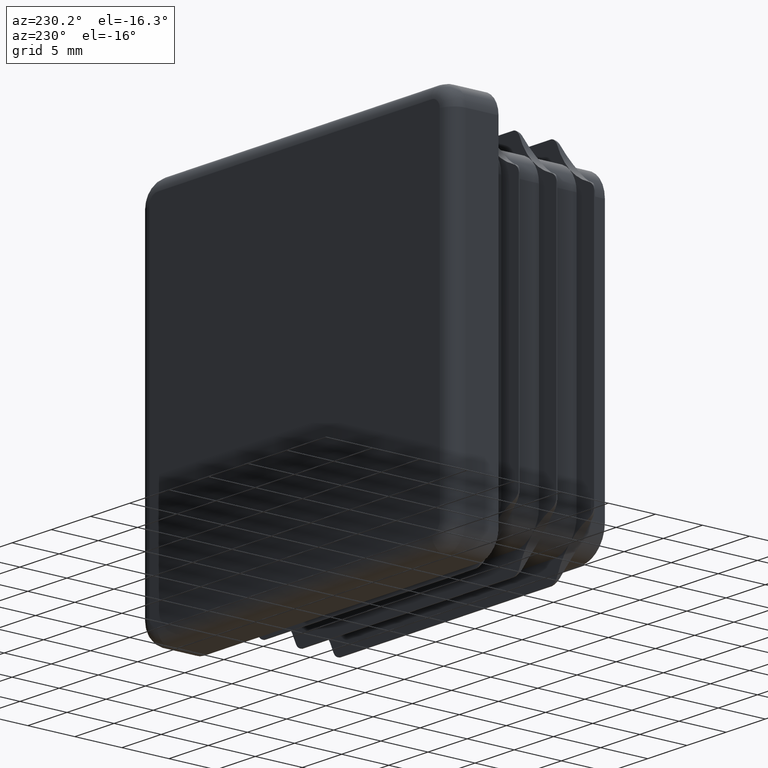
[diagram: clean part render]
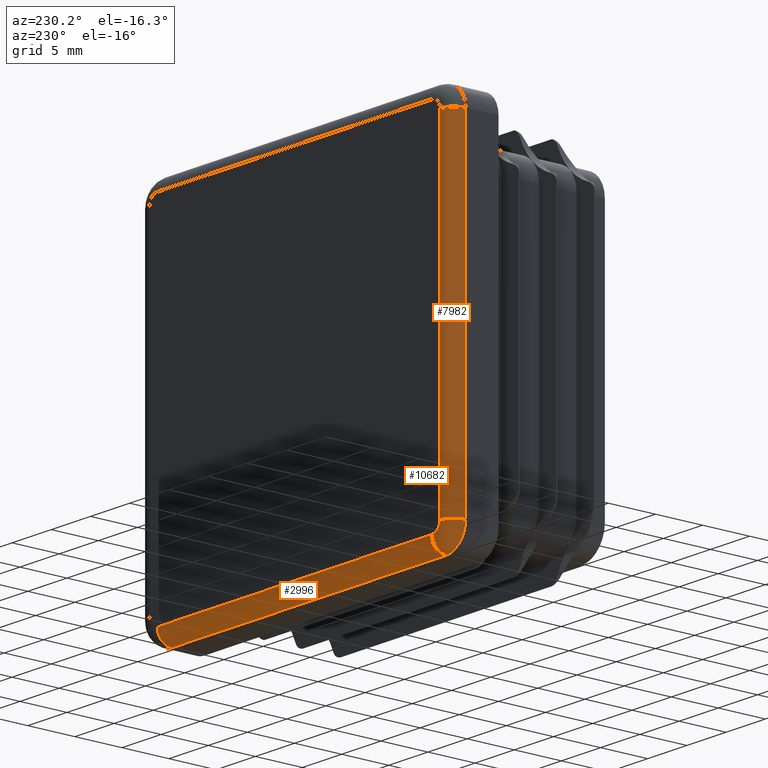
[diagram: same view with one multi-face feature highlighted, each face labeled with its STEP entity id]
A machine part, auxiliary view. The highlighted faces form ONE feature: a constant-radius fillet chain: 3 tangent blend faces with common blend radius 1.5 mm. The faces share edges in the B-rep.
Their STEP definitions:
[1] entity #7982 (Cylinder):
#122 = VERTEX_POINT ( 'NONE', #15623 ) ;
#656 = CYLINDRICAL_SURFACE ( 'NONE', #10711, 1.500000000000001332 ) ;
#1952 = CARTESIAN_POINT ( 'NONE',  ( -18.49999999999999645, 3.500000000000000000, 3.209238430557092336E-15 ) ) ;
#2255 = CIRCLE ( 'NONE', #12307, 1.500000000000001332 ) ;
#3182 = ORIENTED_EDGE ( 'NONE', *, *, #3697, .F. ) ;
#3697 = EDGE_CURVE ( 'NONE', #19536, #8913, #14415, .T. ) ;
#3851 = CARTESIAN_POINT ( 'NONE',  ( -20.00000000000000000, 3.500000000000000000, -17.50000000000000000 ) ) ;
#4991 = ORIENTED_EDGE ( 'NONE', *, *, #7551, .F. ) ;
#5098 = FACE_OUTER_BOUND ( 'NONE', #17930, .T. ) ;
#5483 = VECTOR ( 'NONE', #7696, 1000.000000000000000 ) ;
#5866 = CARTESIAN_POINT ( 'NONE',  ( -18.50000000000000355, 3.500000000000000000, -17.50000000000000000 ) ) ;
#5933 = DIRECTION ( 'NONE',  ( 0.000000000000000000, -0.000000000000000000, 1.000000000000000000 ) ) ;
#6921 = DIRECTION ( 'NONE',  ( -1.000000000000000000, 0.000000000000000000, 1.734723475976804629E-16 ) ) ;
#7551 = EDGE_CURVE ( 'NONE', #15136, #19536, #18425, .T. ) ;
#7696 = DIRECTION ( 'NONE',  ( 1.734723475976807094E-16, -0.000000000000000000, 1.000000000000000000 ) ) ;
#7982 = ADVANCED_FACE ( 'NONE', ( #5098 ), #656, .T. ) ;
#8717 = CARTESIAN_POINT ( 'NONE',  ( -18.49999999999999289, 5.000000000000000000, 17.50000000000000000 ) ) ;
#8913 = VERTEX_POINT ( 'NONE', #3851 ) ;
#9716 = LINE ( 'NONE', #18448, #5483 ) ;
#10711 = AXIS2_PLACEMENT_3D ( 'NONE', #1952, #16342, #6921 ) ;
#10949 = AXIS2_PLACEMENT_3D ( 'NONE', #12856, #15759, #11172 ) ;
#11172 = DIRECTION ( 'NONE',  ( 1.000000000000000000, 0.000000000000000000, -2.312964634635740689E-15 ) ) ;
#11248 = VECTOR ( 'NONE', #17302, 1000.000000000000000 ) ;
#11545 = CARTESIAN_POINT ( 'NONE',  ( -19.99999999999999289, 3.500000000000000000, 17.50000000000000355 ) ) ;
#12307 = AXIS2_PLACEMENT_3D ( 'NONE', #5866, #5933, #16877 ) ;
#12856 = CARTESIAN_POINT ( 'NONE',  ( -18.49999999999999289, 3.500000000000000000, 17.50000000000000000 ) ) ;
#13141 = EDGE_CURVE ( 'NONE', #122, #15136, #9716, .T. ) ;
#14040 = EDGE_CURVE ( 'NONE', #122, #8913, #2255, .T. ) ;
#14415 = LINE ( 'NONE', #15718, #11248 ) ;
#15136 = VERTEX_POINT ( 'NONE', #8717 ) ;
#15623 = CARTESIAN_POINT ( 'NONE',  ( -18.50000000000000355, 5.000000000000000000, -17.50000000000000000 ) ) ;
#15718 = CARTESIAN_POINT ( 'NONE',  ( -20.00000000000000000, 3.500000000000000000, -17.50000000000000000 ) ) ;
#15759 = DIRECTION ( 'NONE',  ( 2.312964634635740689E-15, -0.000000000000000000, 1.000000000000000000 ) ) ;
#16342 = DIRECTION ( 'NONE',  ( -1.734723475976807094E-16, 0.000000000000000000, -1.000000000000000000 ) ) ;
#16877 = DIRECTION ( 'NONE',  ( 1.000000000000000000, 0.000000000000000000, 0.000000000000000000 ) ) ;
#17037 = ORIENTED_EDGE ( 'NONE', *, *, #13141, .F. ) ;
#17302 = DIRECTION ( 'NONE',  ( -1.734723475976807094E-16, -0.000000000000000000, -1.000000000000000000 ) ) ;
#17930 = EDGE_LOOP ( 'NONE', ( #20439, #3182, #4991, #17037 ) ) ;
#18425 = CIRCLE ( 'NONE', #10949, 1.500000000000001332 ) ;
#18448 = CARTESIAN_POINT ( 'NONE',  ( -18.49999999999999289, 5.000000000000000000, 17.50000000000000355 ) ) ;
#19536 = VERTEX_POINT ( 'NONE', #11545 ) ;
#20439 = ORIENTED_EDGE ( 'NONE', *, *, #14040, .T. ) ;
[2] entity #10682 (Torus):
#122 = VERTEX_POINT ( 'NONE', #15623 ) ;
#441 = EDGE_CURVE ( 'NONE', #8643, #15096, #13423, .T. ) ;
#1873 = AXIS2_PLACEMENT_3D ( 'NONE', #11788, #13411, #3999 ) ;
#2255 = CIRCLE ( 'NONE', #12307, 1.500000000000001332 ) ;
#3308 = FACE_OUTER_BOUND ( 'NONE', #8910, .T. ) ;
#3563 = CARTESIAN_POINT ( 'NONE',  ( -17.50000000000000000, 5.000000000000000000, -18.50000000000000000 ) ) ;
#3851 = CARTESIAN_POINT ( 'NONE',  ( -20.00000000000000000, 3.500000000000000000, -17.50000000000000000 ) ) ;
#3999 = DIRECTION ( 'NONE',  ( 0.000000000000000000, 0.000000000000000000, 1.000000000000000000 ) ) ;
#5468 = DIRECTION ( 'NONE',  ( 0.000000000000000000, 0.000000000000000000, 1.000000000000000000 ) ) ;
#5546 = DIRECTION ( 'NONE',  ( 0.000000000000000000, 1.000000000000000000, 0.000000000000000000 ) ) ;
#5616 = CARTESIAN_POINT ( 'NONE',  ( -17.50000000000000000, 3.500000000000000000, -17.50000000000000000 ) ) ;
#5661 = CARTESIAN_POINT ( 'NONE',  ( -17.50000000000000000, 5.000000000000000000, -17.50000000000000000 ) ) ;
#5866 = CARTESIAN_POINT ( 'NONE',  ( -18.50000000000000355, 3.500000000000000000, -17.50000000000000000 ) ) ;
#5933 = DIRECTION ( 'NONE',  ( 0.000000000000000000, -0.000000000000000000, 1.000000000000000000 ) ) ;
#7011 = TOROIDAL_SURFACE ( 'NONE', #19389, 1.000000000000000000, 1.500000000000000000 ) ;
#7140 = DIRECTION ( 'NONE',  ( 0.000000000000000000, 0.000000000000000000, -1.000000000000000000 ) ) ;
#7355 = ORIENTED_EDGE ( 'NONE', *, *, #14040, .F. ) ;
#8643 = VERTEX_POINT ( 'NONE', #12666 ) ;
#8910 = EDGE_LOOP ( 'NONE', ( #11729, #20185, #7355, #10916 ) ) ;
#8913 = VERTEX_POINT ( 'NONE', #3851 ) ;
#8931 = AXIS2_PLACEMENT_3D ( 'NONE', #5661, #16671, #19910 ) ;
#10682 = ADVANCED_FACE ( 'NONE', ( #3308 ), #7011, .T. ) ;
#10916 = ORIENTED_EDGE ( 'NONE', *, *, #17513, .F. ) ;
#11078 = CIRCLE ( 'NONE', #8931, 1.000000000000000888 ) ;
#11729 = ORIENTED_EDGE ( 'NONE', *, *, #441, .F. ) ;
#11788 = CARTESIAN_POINT ( 'NONE',  ( -17.50000000000000000, 3.500000000000000000, -17.50000000000000000 ) ) ;
#12307 = AXIS2_PLACEMENT_3D ( 'NONE', #5866, #5933, #16877 ) ;
#12666 = CARTESIAN_POINT ( 'NONE',  ( -17.50000000000000000, 3.500000000000000000, -20.00000000000000000 ) ) ;
#13411 = DIRECTION ( 'NONE',  ( -0.000000000000000000, -1.000000000000000000, -0.000000000000000000 ) ) ;
#13423 = CIRCLE ( 'NONE', #15186, 1.500000000000001332 ) ;
#14040 = EDGE_CURVE ( 'NONE', #122, #8913, #2255, .T. ) ;
#15096 = VERTEX_POINT ( 'NONE', #3563 ) ;
#15186 = AXIS2_PLACEMENT_3D ( 'NONE', #16351, #16556, #7140 ) ;
#15618 = EDGE_CURVE ( 'NONE', #8913, #8643, #17247, .T. ) ;
#15623 = CARTESIAN_POINT ( 'NONE',  ( -18.50000000000000355, 5.000000000000000000, -17.50000000000000000 ) ) ;
#16351 = CARTESIAN_POINT ( 'NONE',  ( -17.50000000000000000, 3.500000000000000000, -18.50000000000000000 ) ) ;
#16556 = DIRECTION ( 'NONE',  ( 1.000000000000000000, 0.000000000000000000, 0.000000000000000000 ) ) ;
#16671 = DIRECTION ( 'NONE',  ( 0.000000000000000000, 1.000000000000000000, 0.000000000000000000 ) ) ;
#16877 = DIRECTION ( 'NONE',  ( 1.000000000000000000, 0.000000000000000000, 0.000000000000000000 ) ) ;
#17247 = CIRCLE ( 'NONE', #1873, 2.500000000000000444 ) ;
#17513 = EDGE_CURVE ( 'NONE', #15096, #122, #11078, .T. ) ;
#19389 = AXIS2_PLACEMENT_3D ( 'NONE', #5616, #5546, #5468 ) ;
#19910 = DIRECTION ( 'NONE',  ( 0.000000000000000000, 0.000000000000000000, 1.000000000000000000 ) ) ;
#20185 = ORIENTED_EDGE ( 'NONE', *, *, #15618, .F. ) ;
[3] entity #2996 (Cylinder):
#441 = EDGE_CURVE ( 'NONE', #8643, #15096, #13423, .T. ) ;
#983 = DIRECTION ( 'NONE',  ( 1.000000000000000000, -0.000000000000000000, 0.000000000000000000 ) ) ;
#1250 = EDGE_CURVE ( 'NONE', #2071, #15096, #17889, .T. ) ;
#2071 = VERTEX_POINT ( 'NONE', #13269 ) ;
#2996 = ADVANCED_FACE ( 'NONE', ( #9074 ), #11758, .T. ) ;
#3487 = AXIS2_PLACEMENT_3D ( 'NONE', #17239, #9903, #5050 ) ;
#3504 = ORIENTED_EDGE ( 'NONE', *, *, #441, .T. ) ;
#3563 = CARTESIAN_POINT ( 'NONE',  ( -17.50000000000000000, 5.000000000000000000, -18.50000000000000000 ) ) ;
#3837 = VECTOR ( 'NONE', #17750, 1000.000000000000000 ) ;
#5050 = DIRECTION ( 'NONE',  ( 0.000000000000000000, 0.000000000000000000, -1.000000000000000000 ) ) ;
#5929 = ORIENTED_EDGE ( 'NONE', *, *, #16263, .F. ) ;
#7140 = DIRECTION ( 'NONE',  ( 0.000000000000000000, 0.000000000000000000, -1.000000000000000000 ) ) ;
#8643 = VERTEX_POINT ( 'NONE', #12666 ) ;
#9074 = FACE_OUTER_BOUND ( 'NONE', #10179, .T. ) ;
#9115 = EDGE_CURVE ( 'NONE', #8643, #11716, #9557, .T. ) ;
#9557 = LINE ( 'NONE', #10694, #19113 ) ;
#9903 = DIRECTION ( 'NONE',  ( 1.000000000000000000, 0.000000000000000000, 0.000000000000000000 ) ) ;
#10179 = EDGE_LOOP ( 'NONE', ( #3504, #19065, #5929, #18471 ) ) ;
#10498 = DIRECTION ( 'NONE',  ( 1.000000000000000000, -0.000000000000000000, -0.000000000000000000 ) ) ;
#10537 = DIRECTION ( 'NONE',  ( 0.000000000000000000, 0.000000000000000000, -1.000000000000000000 ) ) ;
#10694 = CARTESIAN_POINT ( 'NONE',  ( 17.50000000000000355, 3.500000000000000000, -20.00000000000000000 ) ) ;
#11716 = VERTEX_POINT ( 'NONE', #16656 ) ;
#11758 = CYLINDRICAL_SURFACE ( 'NONE', #3487, 1.500000000000001332 ) ;
#12666 = CARTESIAN_POINT ( 'NONE',  ( -17.50000000000000000, 3.500000000000000000, -20.00000000000000000 ) ) ;
#13269 = CARTESIAN_POINT ( 'NONE',  ( 17.50000000000000355, 5.000000000000000000, -18.50000000000000355 ) ) ;
#13423 = CIRCLE ( 'NONE', #15186, 1.500000000000001332 ) ;
#14585 = CARTESIAN_POINT ( 'NONE',  ( -17.50000000000000000, 5.000000000000000000, -18.50000000000000000 ) ) ;
#14939 = AXIS2_PLACEMENT_3D ( 'NONE', #18428, #983, #10537 ) ;
#15096 = VERTEX_POINT ( 'NONE', #3563 ) ;
#15186 = AXIS2_PLACEMENT_3D ( 'NONE', #16351, #16556, #7140 ) ;
#16263 = EDGE_CURVE ( 'NONE', #11716, #2071, #19694, .T. ) ;
#16351 = CARTESIAN_POINT ( 'NONE',  ( -17.50000000000000000, 3.500000000000000000, -18.50000000000000000 ) ) ;
#16556 = DIRECTION ( 'NONE',  ( 1.000000000000000000, 0.000000000000000000, 0.000000000000000000 ) ) ;
#16656 = CARTESIAN_POINT ( 'NONE',  ( 17.50000000000000355, 3.500000000000000000, -20.00000000000000000 ) ) ;
#17239 = CARTESIAN_POINT ( 'NONE',  ( 0.000000000000000000, 3.500000000000000000, -18.50000000000000000 ) ) ;
#17750 = DIRECTION ( 'NONE',  ( -1.000000000000000000, 0.000000000000000000, 0.000000000000000000 ) ) ;
#17889 = LINE ( 'NONE', #14585, #3837 ) ;
#18428 = CARTESIAN_POINT ( 'NONE',  ( 17.50000000000000355, 3.500000000000000000, -18.50000000000000000 ) ) ;
#18471 = ORIENTED_EDGE ( 'NONE', *, *, #9115, .F. ) ;
#19065 = ORIENTED_EDGE ( 'NONE', *, *, #1250, .F. ) ;
#19113 = VECTOR ( 'NONE', #10498, 1000.000000000000000 ) ;
#19694 = CIRCLE ( 'NONE', #14939, 1.500000000000001332 ) ;